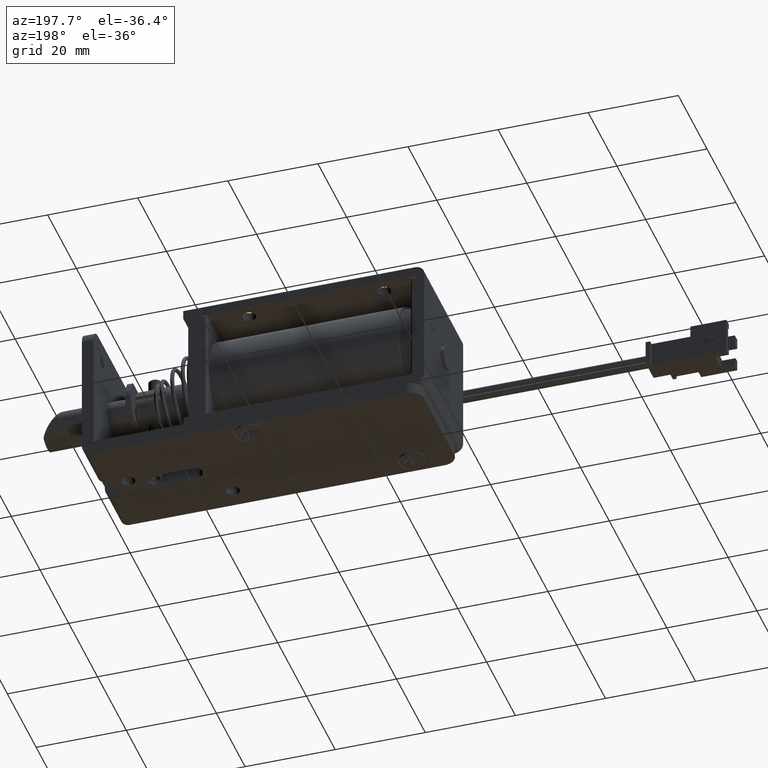
[diagram: clean part render]
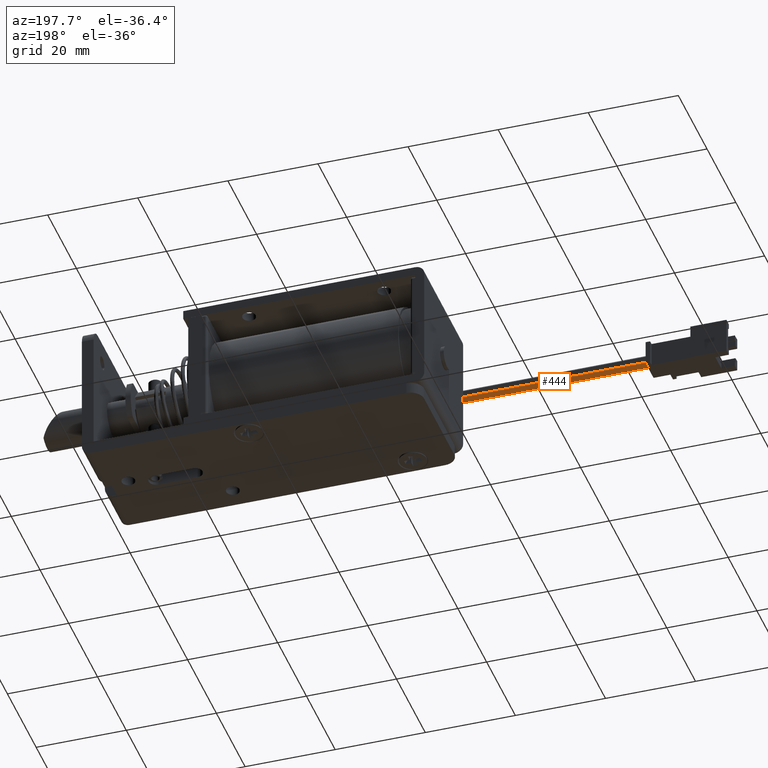
[diagram: same view with one face highlighted and labeled with its STEP entity id]
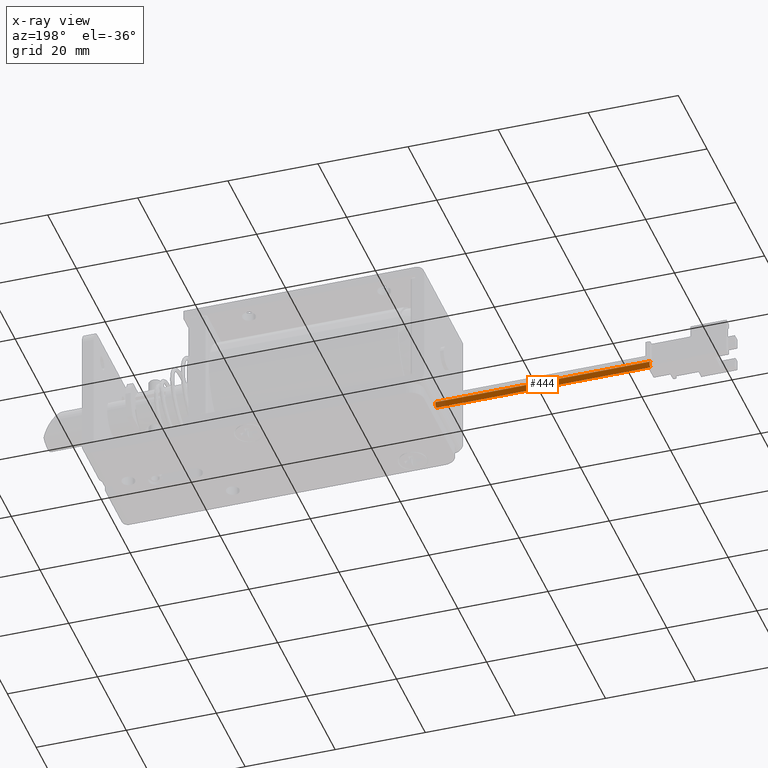
[diagram: x-ray of the same camera — body ghosted, the highlighted face saturated]
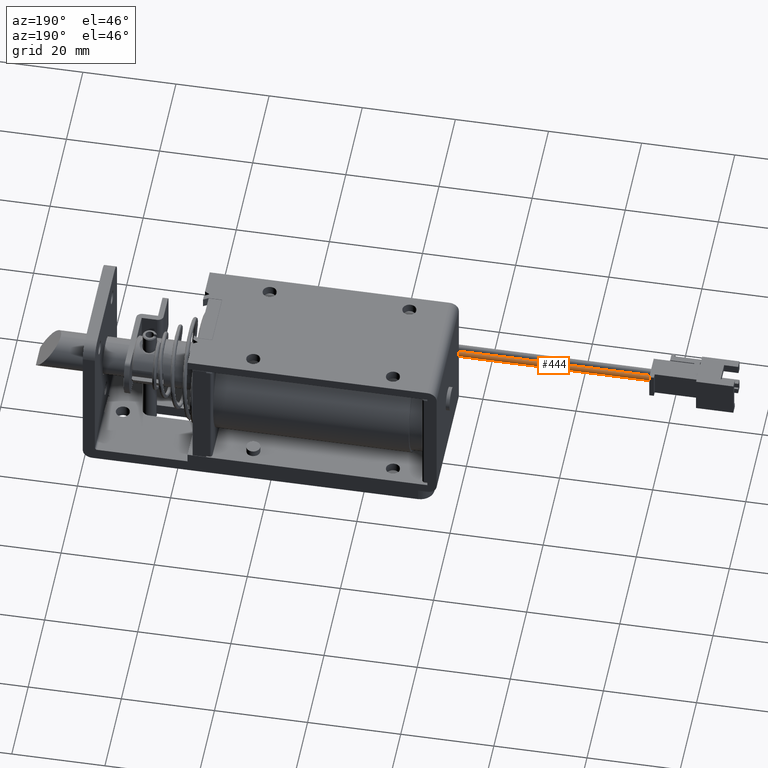
[diagram: same view with one face highlighted and labeled with its STEP entity id]
A machine part, auxiliary view. The second image highlights one B-rep face of the part: STEP entity #444.
The next image is the same camera in x-ray: the body ghosted, the highlighted face saturated — about 5% of this face is hidden behind the body in this view.
A second angle (auxiliary view) of the same face is appended — the face is thin or edge-on in the first view.
In plain terms, the highlighted cylindrical surface (edge-blend (fillet) strip) has radius 0.7 mm, axis along (-1, 0, 0).
Its self-contained STEP definition (entity closure, byte-faithful):
#444=ADVANCED_FACE('',(#3515),#3514,.T.);
#3514=CYLINDRICAL_SURFACE('',#6014,6.99999999996E-01);
#3515=FACE_OUTER_BOUND('',#6015,.T.);
#6011=CARTESIAN_POINT('',(-1.17236061680E+02,-1.43000000000E+01,-7.99999999996E-01));
#6012=DIRECTION('',(-1.00000000000E+00,-0.00000000000E+00,0.00000000000E+00));
#6013=DIRECTION('',(-0.00000000000E+00,-1.22464679915E-16,-1.00000000000E+00));
#6014=AXIS2_PLACEMENT_3D('',#6011,#6012,#6013);
#6015=EDGE_LOOP('',(#9306,#9307,#9308,#9309));
#9306=ORIENTED_EDGE('',*,*,#10538,.F.);
#9307=ORIENTED_EDGE('',*,*,#10568,.T.);
#9308=ORIENTED_EDGE('',*,*,#10063,.F.);
#9309=ORIENTED_EDGE('',*,*,#10569,.F.);
#10063=EDGE_CURVE('',#13000,#13001,#13002,.T.);
#10538=EDGE_CURVE('',#16135,#16142,#16143,.T.);
#10568=EDGE_CURVE('',#16135,#13001,#16331,.T.);
#10569=EDGE_CURVE('',#16142,#13000,#16337,.T.);
#13000=VERTEX_POINT('',#18818);
#13001=VERTEX_POINT('',#18819);
#13002=CIRCLE('',#18823,6.99999999996E-01);
#16135=VERTEX_POINT('',#20661);
#16142=VERTEX_POINT('',#20666);
#16143=CIRCLE('',#20670,6.99999999996E-01);
#16331=(BOUNDED_CURVE() B_SPLINE_CURVE(1,(#20866,#20867),.UNSPECIFIED.,.F.,.F.) B_SPLINE_CURVE_WITH_KNOTS((2,2),(8.33333335810E-02,9.16666666255E-01),.UNSPECIFIED.) CURVE() GEOMETRIC_REPRESENTATION_ITEM() RATIONAL_B_SPLINE_CURVE((1.00000000000E+00,1.00000000000E+00)) REPRESENTATION_ITEM('') );
#16337=(BOUNDED_CURVE() B_SPLINE_CURVE(1,(#20868,#20869),.UNSPECIFIED.,.F.,.F.) B_SPLINE_CURVE_WITH_KNOTS((2,2),(8.33333333333E-02,9.16666666667E-01),.UNSPECIFIED.) CURVE() GEOMETRIC_REPRESENTATION_ITEM() RATIONAL_B_SPLINE_CURVE((7.50000000000E-01,7.50000000000E-01)) REPRESENTATION_ITEM('') );
#18818=CARTESIAN_POINT('',(-1.17336061680E+02,-1.43000000000E+01,-1.00000000000E-01));
#18819=CARTESIAN_POINT('',(-1.17336061680E+02,-1.43000000000E+01,-1.49999999999E+00));
#18820=CARTESIAN_POINT('',(-1.17336061680E+02,-1.43000000000E+01,-7.99999999996E-01));
#18821=DIRECTION('',(-1.00000000000E+00,0.00000000000E+00,0.00000000000E+00));
#18822=DIRECTION('',(0.00000000000E+00,-1.22460635382E-16,1.00000000000E+00));
#18823=AXIS2_PLACEMENT_3D('',#18820,#18821,#18822);
#20661=CARTESIAN_POINT('',(-6.98000000000E+01,-1.43000038181E+01,-1.49999999998E+00));
#20666=CARTESIAN_POINT('',(-6.98000000000E+01,-1.42999273414E+01,-1.00000003771E-01));
#20667=CARTESIAN_POINT('',(-6.98000000000E+01,-1.43000000000E+01,-7.99999999996E-01));
#20668=DIRECTION('',(1.00000000000E+00,0.00000000000E+00,0.00000000000E+00));
#20669=DIRECTION('',(0.00000000000E+00,-1.00000000000E+00,7.04487466627E-16));
#20670=AXIS2_PLACEMENT_3D('',#20667,#20668,#20669);
#20866=CARTESIAN_POINT('',(-6.98000000141E+01,-1.43000000000E+01,-1.49999999999E+00));
#20867=CARTESIAN_POINT('',(-1.17336061657E+02,-1.43000000000E+01,-1.49999999999E+00));
#20868=CARTESIAN_POINT('',(-6.98000000000E+01,-1.43000000000E+01,-1.00000000000E-01));
#20869=CARTESIAN_POINT('',(-1.17336061680E+02,-1.43000000000E+01,-1.00000000000E-01));